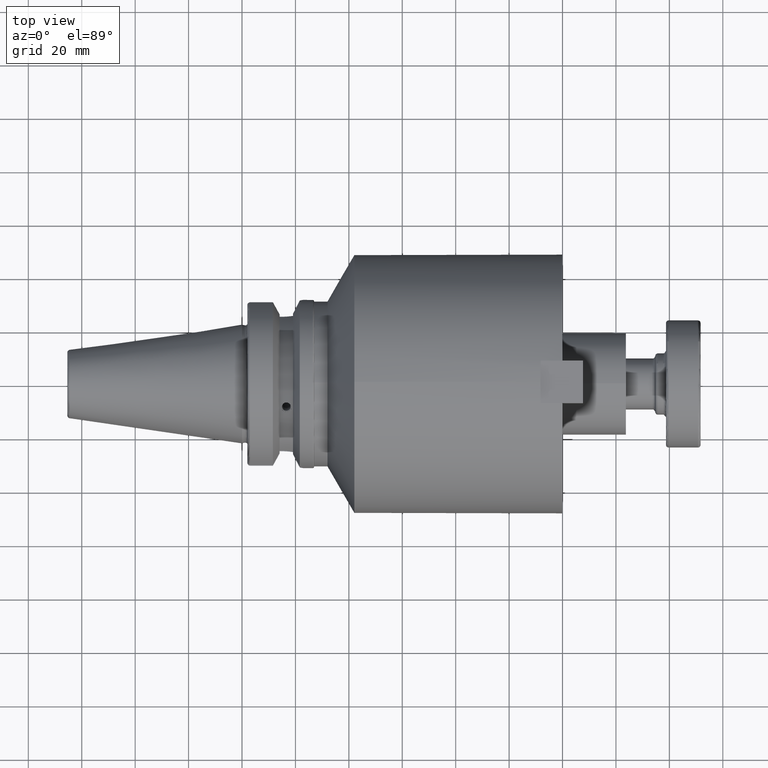
[diagram: clean part render]
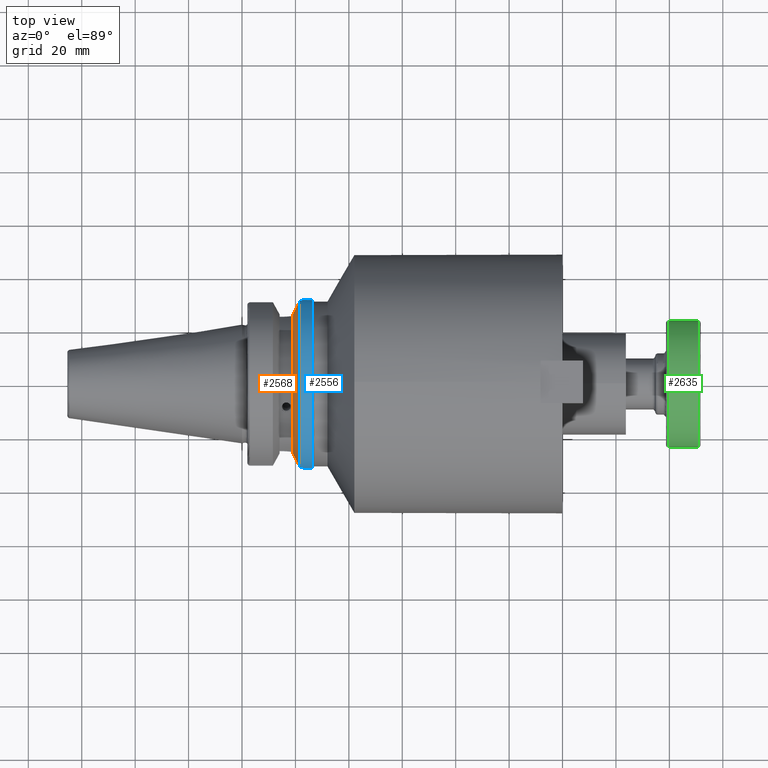
[diagram: same view with three faces highlighted in distinct colors, each labeled with its STEP entity id]
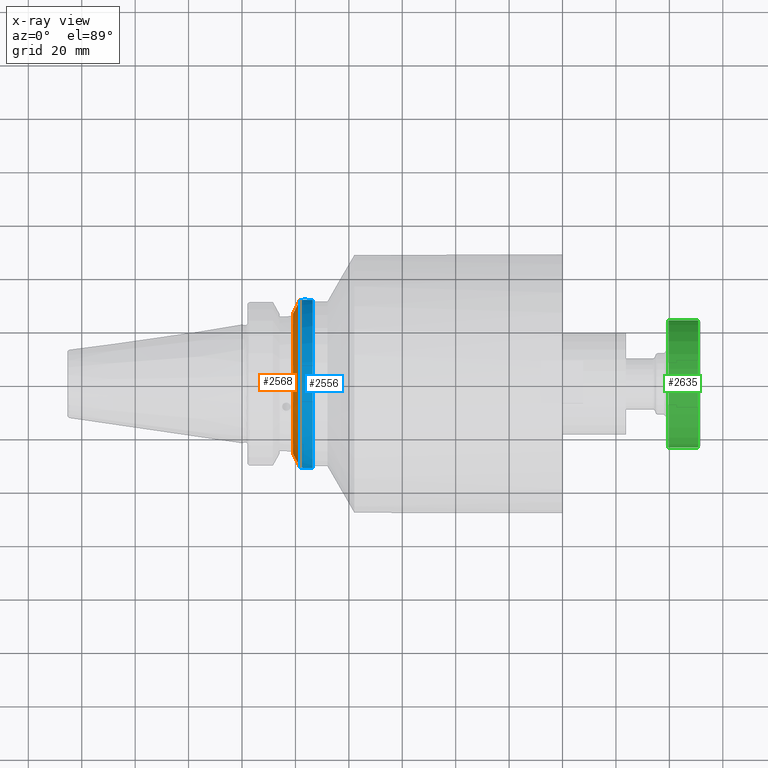
[diagram: x-ray of the same camera — body ghosted, the three highlighted faces saturated]
A machine part, top view with three faces highlighted in distinct colors.
The next image is the same camera in x-ray (body ghosted, the three faces saturated) — at least one of them is partly hidden behind the body in this view.
Their STEP definitions:

[orange] entity #2568 — the highlighted conical surface has half-angle 60.125 deg.
#531=B_SPLINE_CURVE_WITH_KNOTS('',3,(#4327,#4328,#4329,#4330,#4331,#4332),
 .UNSPECIFIED.,.F.,.F.,(4,2,4),(1.46421027899559,1.54570476603972,2.04294020568399),
 .UNSPECIFIED.);
#540=B_SPLINE_CURVE_WITH_KNOTS('',3,(#4486,#4487,#4488,#4489,#4490,#4491),
 .UNSPECIFIED.,.F.,.F.,(4,2,4),(3.12975744792547,3.62699288756974,3.70848737461386),
 .UNSPECIFIED.);
#650=CIRCLE('',#2896,31.5);
#660=CIRCLE('',#2918,27.0940716549138);
#759=CONICAL_SURFACE('',#2917,29.2970358274569,1.0493792127616);
#825=FACE_OUTER_BOUND('',#964,.T.);
#964=EDGE_LOOP('',(#2135,#2136,#2137,#2138));
#1395=VERTEX_POINT('',#4319);
#1396=VERTEX_POINT('',#4326);
#1416=VERTEX_POINT('',#4406);
#1429=VERTEX_POINT('',#4484);
#1633=EDGE_CURVE('',#1396,#1395,#531,.T.);
#1658=EDGE_CURVE('',#1416,#1395,#650,.T.);
#1680=EDGE_CURVE('',#1416,#1429,#540,.T.);
#1691=EDGE_CURVE('',#1429,#1396,#660,.T.);
#2135=ORIENTED_EDGE('',*,*,#1633,.T.);
#2136=ORIENTED_EDGE('',*,*,#1658,.F.);
#2137=ORIENTED_EDGE('',*,*,#1680,.T.);
#2138=ORIENTED_EDGE('',*,*,#1691,.T.);
#2568=ADVANCED_FACE('',(#825),#759,.T.);
#2896=AXIS2_PLACEMENT_3D('',#4417,#3396,#3397);
#2917=AXIS2_PLACEMENT_3D('',#4523,#3453,#3454);
#2918=AXIS2_PLACEMENT_3D('',#4524,#3455,#3456);
#3396=DIRECTION('center_axis',(1.,0.,0.));
#3397=DIRECTION('ref_axis',(0.,0.,-1.));
#3453=DIRECTION('center_axis',(1.,0.,0.));
#3454=DIRECTION('ref_axis',(0.,1.,0.));
#3455=DIRECTION('center_axis',(1.,0.,0.));
#3456=DIRECTION('ref_axis',(0.,0.,-1.));
#4319=CARTESIAN_POINT('',(21.6309636926618,-31.1782420264945,4.4907932637046));
#4326=CARTESIAN_POINT('',(19.1,-26.201311395455,6.89782574439221));
#4327=CARTESIAN_POINT('Ctrl Pts',(19.1,-26.201311395455,6.89782574439221));
#4328=CARTESIAN_POINT('Ctrl Pts',(19.2210929544554,-26.4384736933511,6.82497151762395));
#4329=CARTESIAN_POINT('Ctrl Pts',(19.3406963650697,-26.6728819297428,6.74867108656039));
#4330=CARTESIAN_POINT('Ctrl Pts',(20.1784155384866,-28.3157123387484,6.18231368976925));
#4331=CARTESIAN_POINT('Ctrl Pts',(20.9728756148303,-29.8797957262939,5.46983244373115));
#4332=CARTESIAN_POINT('Ctrl Pts',(21.6309636926618,-31.1782420264945,4.4907932637046));
#4406=CARTESIAN_POINT('',(21.6309636926618,31.1782420264945,4.4907932637046));
#4417=CARTESIAN_POINT('Origin',(21.6309636926618,0.,0.));
#4484=CARTESIAN_POINT('',(19.1,26.201311395455,6.89782574439221));
#4486=CARTESIAN_POINT('Ctrl Pts',(21.6309636926618,31.1782420264945,4.4907932637046));
#4487=CARTESIAN_POINT('Ctrl Pts',(20.9728756148303,29.8797957262939,5.46983244373114));
#4488=CARTESIAN_POINT('Ctrl Pts',(20.1784155384866,28.3157123387484,6.18231368976924));
#4489=CARTESIAN_POINT('Ctrl Pts',(19.3406963650697,26.6728819297428,6.74867108656039));
#4490=CARTESIAN_POINT('Ctrl Pts',(19.2210929544554,26.438473693351,6.82497151762395));
#4491=CARTESIAN_POINT('Ctrl Pts',(19.1,26.201311395455,6.89782574439221));
#4523=CARTESIAN_POINT('Origin',(20.3654818463309,0.,0.));
#4524=CARTESIAN_POINT('Origin',(19.1,0.,0.));

[blue] entity #2556 — the highlighted cylindrical surface (bore or boss wall) has radius 31.5 mm, axis along (1, 0, 0).
#529=B_SPLINE_CURVE_WITH_KNOTS('',3,(#4313,#4314,#4315,#4316,#4317,#4318),
 .UNSPECIFIED.,.F.,.F.,(4,2,4),(1.21877751840372,1.52344857393281,1.67526011710938),
 .UNSPECIFIED.);
#530=B_SPLINE_CURVE_WITH_KNOTS('',3,(#4320,#4321,#4322,#4323,#4324,#4325),
 .UNSPECIFIED.,.F.,.F.,(4,2,4),(0.762294919698051,0.914106462874623,1.21877751840372),
 .UNSPECIFIED.);
#535=B_SPLINE_CURVE_WITH_KNOTS('',3,(#4407,#4408,#4409,#4410,#4411,#4412,
#4413,#4414,#4415,#4416),.UNSPECIFIED.,.F.,.F.,(4,2,2,2,4),(3.19984995650548,
3.35166149968205,3.65633255521115,3.96100361074024,4.11281515391681),
 .UNSPECIFIED.);
#594=CYLINDRICAL_SURFACE('',#2893,31.5);
#648=CIRCLE('',#2894,31.5);
#649=CIRCLE('',#2895,31.5);
#650=CIRCLE('',#2896,31.5);
#651=CIRCLE('',#2897,31.5);
#813=FACE_OUTER_BOUND('',#951,.T.);
#951=EDGE_LOOP('',(#2064,#2065,#2066,#2067,#2068,#2069,#2070,#2071,#2072));
#1104=LINE('',#4403,#1241);
#1241=VECTOR('',#3393,31.5);
#1393=VERTEX_POINT('',#4305);
#1394=VERTEX_POINT('',#4312);
#1395=VERTEX_POINT('',#4319);
#1413=VERTEX_POINT('',#4400);
#1414=VERTEX_POINT('',#4401);
#1415=VERTEX_POINT('',#4404);
#1416=VERTEX_POINT('',#4406);
#1631=EDGE_CURVE('',#1394,#1393,#529,.T.);
#1632=EDGE_CURVE('',#1395,#1394,#530,.T.);
#1654=EDGE_CURVE('',#1413,#1414,#648,.T.);
#1655=EDGE_CURVE('',#1413,#1394,#1104,.T.);
#1656=EDGE_CURVE('',#1393,#1415,#649,.T.);
#1657=EDGE_CURVE('',#1415,#1416,#535,.T.);
#1658=EDGE_CURVE('',#1416,#1395,#650,.T.);
#1659=EDGE_CURVE('',#1414,#1413,#651,.T.);
#2064=ORIENTED_EDGE('',*,*,#1654,.F.);
#2065=ORIENTED_EDGE('',*,*,#1655,.T.);
#2066=ORIENTED_EDGE('',*,*,#1631,.T.);
#2067=ORIENTED_EDGE('',*,*,#1656,.T.);
#2068=ORIENTED_EDGE('',*,*,#1657,.T.);
#2069=ORIENTED_EDGE('',*,*,#1658,.T.);
#2070=ORIENTED_EDGE('',*,*,#1632,.T.);
#2071=ORIENTED_EDGE('',*,*,#1655,.F.);
#2072=ORIENTED_EDGE('',*,*,#1659,.F.);
#2556=ADVANCED_FACE('',(#813),#594,.T.);
#2893=AXIS2_PLACEMENT_3D('',#4399,#3389,#3390);
#2894=AXIS2_PLACEMENT_3D('',#4402,#3391,#3392);
#2895=AXIS2_PLACEMENT_3D('',#4405,#3394,#3395);
#2896=AXIS2_PLACEMENT_3D('',#4417,#3396,#3397);
#2897=AXIS2_PLACEMENT_3D('',#4418,#3398,#3399);
#3389=DIRECTION('center_axis',(1.,0.,0.));
#3390=DIRECTION('ref_axis',(0.,1.,0.));
#3391=DIRECTION('center_axis',(1.,0.,0.));
#3392=DIRECTION('ref_axis',(0.,0.,-1.));
#3393=DIRECTION('',(-1.,0.,0.));
#3394=DIRECTION('center_axis',(1.,0.,0.));
#3395=DIRECTION('ref_axis',(0.,0.,-1.));
#3396=DIRECTION('center_axis',(1.,0.,0.));
#3397=DIRECTION('ref_axis',(0.,0.,-1.));
#3398=DIRECTION('center_axis',(1.,0.,0.));
#3399=DIRECTION('ref_axis',(0.,0.,-1.));
#4305=CARTESIAN_POINT('',(21.6309636926618,-31.1782420264945,-4.4907932637046));
#4312=CARTESIAN_POINT('',(23.,-31.5,-1.51248507442265E-15));
#4313=CARTESIAN_POINT('Ctrl Pts',(23.,-31.5,8.32667268468867E-16));
#4314=CARTESIAN_POINT('Ctrl Pts',(23.,-31.5,-1.01557018509698));
#4315=CARTESIAN_POINT('Ctrl Pts',(22.7961189876535,-31.445974204441,-2.09580170425552));
#4316=CARTESIAN_POINT('Ctrl Pts',(22.1796133812044,-31.2997625705024,-3.58065358198869));
#4317=CARTESIAN_POINT('Ctrl Pts',(21.92482980253,-31.2412125047166,-4.05360796141051));
#4318=CARTESIAN_POINT('Ctrl Pts',(21.6309636926618,-31.1782420264945,-4.4907932637046));
#4319=CARTESIAN_POINT('',(21.6309636926618,-31.1782420264945,4.4907932637046));
#4320=CARTESIAN_POINT('Ctrl Pts',(21.6309636926618,-31.1782420264945,4.4907932637046));
#4321=CARTESIAN_POINT('Ctrl Pts',(21.92482980253,-31.2412125047166,4.05360796141051));
#4322=CARTESIAN_POINT('Ctrl Pts',(22.1796133812044,-31.2997625705024,3.58065358198869));
#4323=CARTESIAN_POINT('Ctrl Pts',(22.7961189876535,-31.445974204441,2.09580170425552));
#4324=CARTESIAN_POINT('Ctrl Pts',(23.,-31.5,1.01557018509698));
#4325=CARTESIAN_POINT('Ctrl Pts',(23.,-31.5,-2.77555756156289E-16));
#4399=CARTESIAN_POINT('Origin',(24.0654818463309,0.,0.));
#4400=CARTESIAN_POINT('',(26.5,-31.5,-3.85763741731416E-15));
#4401=CARTESIAN_POINT('',(26.5,-3.85763741731416E-15,31.5));
#4402=CARTESIAN_POINT('Origin',(26.5,0.,0.));
#4403=CARTESIAN_POINT('',(24.0654818463309,-31.5,-3.85763741731416E-15));
#4404=CARTESIAN_POINT('',(21.6309636926618,31.1782420264945,-4.4907932637046));
#4405=CARTESIAN_POINT('Origin',(21.6309636926618,0.,0.));
#4406=CARTESIAN_POINT('',(21.6309636926618,31.1782420264945,4.4907932637046));
#4407=CARTESIAN_POINT('Ctrl Pts',(21.6309636926618,31.1782420264945,-4.4907932637046));
#4408=CARTESIAN_POINT('Ctrl Pts',(21.92482980253,31.2412125047166,-4.05360796141051));
#4409=CARTESIAN_POINT('Ctrl Pts',(22.1796133812043,31.2997625705024,-3.58065358198869));
#4410=CARTESIAN_POINT('Ctrl Pts',(22.7961189876535,31.445974204441,-2.09580170425552));
#4411=CARTESIAN_POINT('Ctrl Pts',(23.,31.5,-1.01557018509698));
#4412=CARTESIAN_POINT('Ctrl Pts',(23.,31.5,1.01557018509698));
#4413=CARTESIAN_POINT('Ctrl Pts',(22.7961189876535,31.445974204441,2.09580170425552));
#4414=CARTESIAN_POINT('Ctrl Pts',(22.1796133812044,31.2997625705024,3.58065358198869));
#4415=CARTESIAN_POINT('Ctrl Pts',(21.92482980253,31.2412125047166,4.05360796141051));
#4416=CARTESIAN_POINT('Ctrl Pts',(21.6309636926618,31.1782420264945,4.4907932637046));
#4417=CARTESIAN_POINT('Origin',(21.6309636926618,0.,0.));
#4418=CARTESIAN_POINT('Origin',(26.5,0.,0.));

[green] entity #2635 — the highlighted cylindrical surface (bore or boss wall) has radius 23.85 mm, axis along (-1, 0, 0).
#611=CYLINDRICAL_SURFACE('',#3090,23.85);
#743=CIRCLE('',#3088,23.85);
#744=CIRCLE('',#3089,23.85);
#745=CIRCLE('',#3091,23.85);
#746=CIRCLE('',#3092,23.85);
#892=FACE_OUTER_BOUND('',#1043,.T.);
#1043=EDGE_LOOP('',(#2437,#2438,#2439,#2440,#2441,#2442));
#1183=LINE('',#5157,#1320);
#1320=VECTOR('',#3864,23.85);
#1520=VERTEX_POINT('',#5150);
#1521=VERTEX_POINT('',#5152);
#1522=VERTEX_POINT('',#5156);
#1523=VERTEX_POINT('',#5158);
#1828=EDGE_CURVE('',#1520,#1521,#743,.T.);
#1829=EDGE_CURVE('',#1521,#1520,#744,.T.);
#1830=EDGE_CURVE('',#1521,#1522,#1183,.T.);
#1831=EDGE_CURVE('',#1523,#1522,#745,.T.);
#1832=EDGE_CURVE('',#1522,#1523,#746,.T.);
#2437=ORIENTED_EDGE('',*,*,#1829,.F.);
#2438=ORIENTED_EDGE('',*,*,#1830,.T.);
#2439=ORIENTED_EDGE('',*,*,#1831,.F.);
#2440=ORIENTED_EDGE('',*,*,#1832,.F.);
#2441=ORIENTED_EDGE('',*,*,#1830,.F.);
#2442=ORIENTED_EDGE('',*,*,#1828,.F.);
#2635=ADVANCED_FACE('',(#892),#611,.T.);
#3088=AXIS2_PLACEMENT_3D('',#5153,#3858,#3859);
#3089=AXIS2_PLACEMENT_3D('',#5154,#3860,#3861);
#3090=AXIS2_PLACEMENT_3D('',#5155,#3862,#3863);
#3091=AXIS2_PLACEMENT_3D('',#5159,#3865,#3866);
#3092=AXIS2_PLACEMENT_3D('',#5160,#3867,#3868);
#3858=DIRECTION('center_axis',(1.,0.,0.));
#3859=DIRECTION('ref_axis',(0.,-1.,1.83697019872103E-16));
#3860=DIRECTION('center_axis',(1.,0.,0.));
#3861=DIRECTION('ref_axis',(0.,-1.,1.83697019872103E-16));
#3862=DIRECTION('center_axis',(1.,0.,0.));
#3863=DIRECTION('ref_axis',(0.,1.,0.));
#3864=DIRECTION('',(-1.,0.,0.));
#3865=DIRECTION('center_axis',(-1.,0.,0.));
#3866=DIRECTION('ref_axis',(0.,-1.,1.83697019872103E-16));
#3867=DIRECTION('center_axis',(-1.,0.,0.));
#3868=DIRECTION('ref_axis',(0.,-1.,1.83697019872103E-16));
#5150=CARTESIAN_POINT('',(12.,-2.92078261596644E-15,23.85));
#5152=CARTESIAN_POINT('',(12.,-23.85,-2.92078261596644E-15));
#5153=CARTESIAN_POINT('Origin',(12.,0.,0.));
#5154=CARTESIAN_POINT('Origin',(12.,0.,0.));
#5155=CARTESIAN_POINT('Origin',(6.5,0.,0.));
#5156=CARTESIAN_POINT('',(1.,-23.85,-2.92078261596644E-15));
#5157=CARTESIAN_POINT('',(6.5,-23.85,-2.92078261596644E-15));
#5158=CARTESIAN_POINT('',(1.,-2.92078261596644E-15,23.85));
#5159=CARTESIAN_POINT('Origin',(1.,0.,0.));
#5160=CARTESIAN_POINT('Origin',(1.,0.,0.));